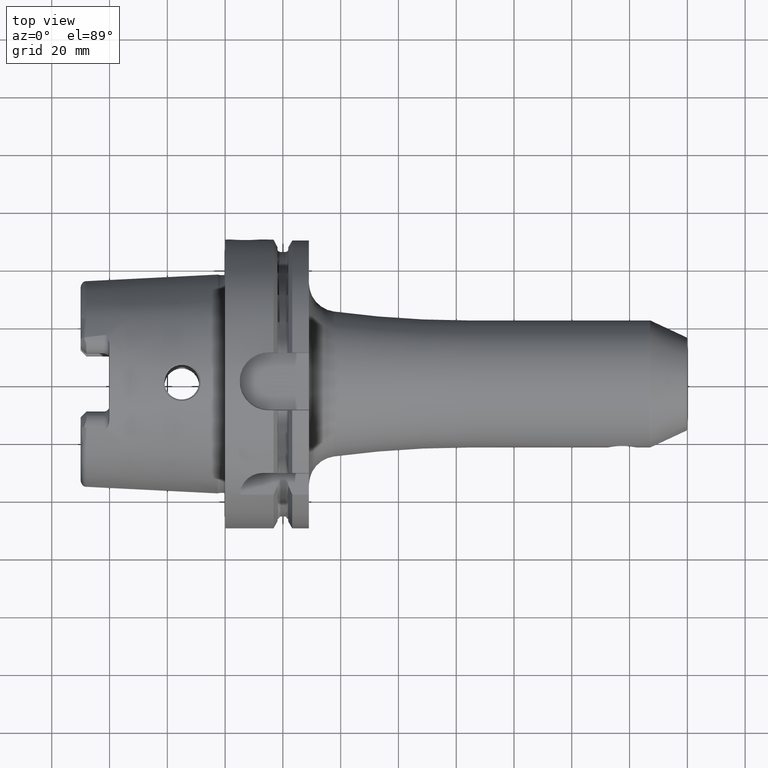
[diagram: clean part render]
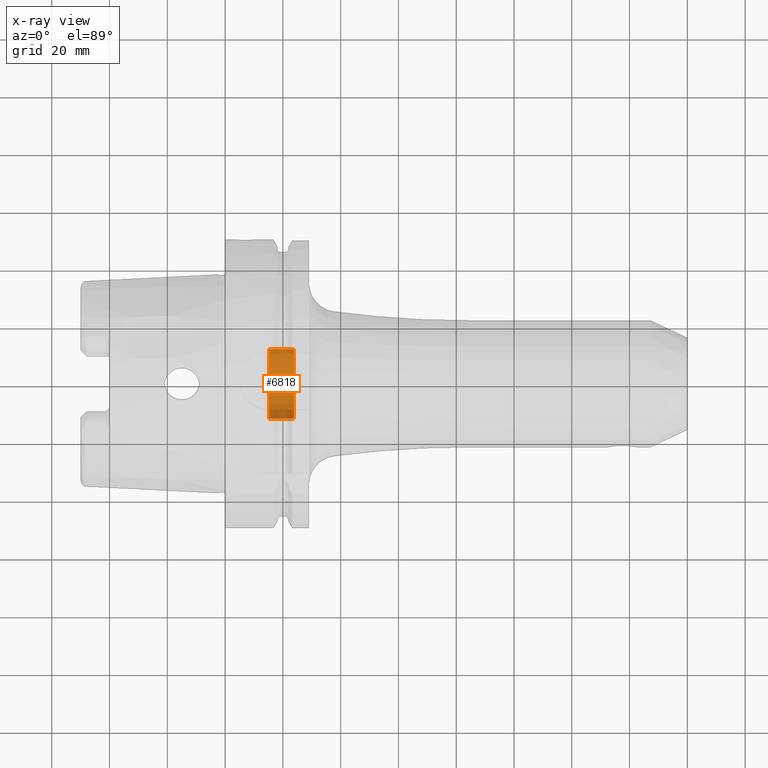
[diagram: x-ray — body ghosted, one internal face saturated and labeled with its STEP entity id]
A machine part, top view, then the same camera in x-ray: the body is ghosted and one INTERNAL B-rep face — a face not visible from any outside direction — is saturated and labeled: STEP entity #6818.
In plain terms, the highlighted cylindrical surface (edge-blend (fillet) strip) has radius 12 mm, axis along (1, 0, 0).
Its self-contained STEP definition (entity closure, byte-faithful):
#6731=CARTESIAN_POINT('',(1.51625E1,0.E0,0.E0));
#6732=DIRECTION('',(1.E0,0.E0,0.E0));
#6733=DIRECTION('',(0.E0,-1.E0,0.E0));
#6734=AXIS2_PLACEMENT_3D('',#6731,#6732,#6733);
#6736=CARTESIAN_POINT('',(2.385262794416E1,0.E0,0.E0));
#6737=DIRECTION('',(-1.E0,0.E0,0.E0));
#6738=DIRECTION('',(0.E0,1.E0,0.E0));
#6739=AXIS2_PLACEMENT_3D('',#6736,#6737,#6738);
#6756=DIRECTION('',(-1.E0,0.E0,0.E0));
#6757=VECTOR('',#6756,8.690127944163E0);
#6758=CARTESIAN_POINT('',(2.385262794416E1,-1.2E1,0.E0));
#6759=LINE('',#6758,#6757);
#6765=DIRECTION('',(-1.E0,0.E0,0.E0));
#6766=VECTOR('',#6765,8.690127944163E0);
#6767=CARTESIAN_POINT('',(2.385262794416E1,1.2E1,0.E0));
#6768=LINE('',#6767,#6766);
#6791=CARTESIAN_POINT('',(1.51625E1,-1.2E1,0.E0));
#6792=CARTESIAN_POINT('',(1.51625E1,1.2E1,0.E0));
#6793=VERTEX_POINT('',#6791);
#6794=VERTEX_POINT('',#6792);
#6795=CARTESIAN_POINT('',(2.385262794416E1,-1.2E1,0.E0));
#6796=CARTESIAN_POINT('',(2.385262794416E1,1.2E1,0.E0));
#6797=VERTEX_POINT('',#6795);
#6798=VERTEX_POINT('',#6796);
#6803=CARTESIAN_POINT('',(-4.847666062263E0,0.E0,0.E0));
#6804=DIRECTION('',(1.E0,0.E0,0.E0));
#6805=DIRECTION('',(0.E0,-1.E0,0.E0));
#6806=AXIS2_PLACEMENT_3D('',#6803,#6804,#6805);
#6807=CYLINDRICAL_SURFACE('',#6806,1.2E1);
#6809=ORIENTED_EDGE('',*,*,#6808,.T.);
#6811=ORIENTED_EDGE('',*,*,#6810,.F.);
#6813=ORIENTED_EDGE('',*,*,#6812,.T.);
#6815=ORIENTED_EDGE('',*,*,#6814,.T.);
#6816=EDGE_LOOP('',(#6809,#6811,#6813,#6815));
#6817=FACE_OUTER_BOUND('',#6816,.F.);
#6818=ADVANCED_FACE('',(#6817),#6807,.F.);
#6735=CIRCLE('',#6734,1.2E1);
#6740=CIRCLE('',#6739,1.2E1);
#6808=EDGE_CURVE('',#6793,#6794,#6735,.T.);
#6810=EDGE_CURVE('',#6798,#6794,#6768,.T.);
#6812=EDGE_CURVE('',#6798,#6797,#6740,.T.);
#6814=EDGE_CURVE('',#6797,#6793,#6759,.T.);